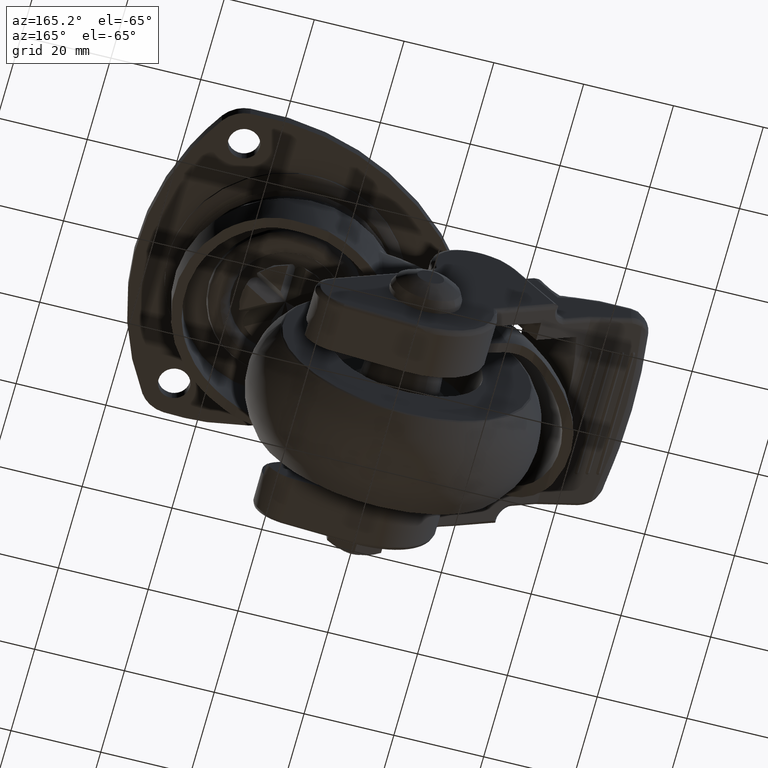
[diagram: clean part render]
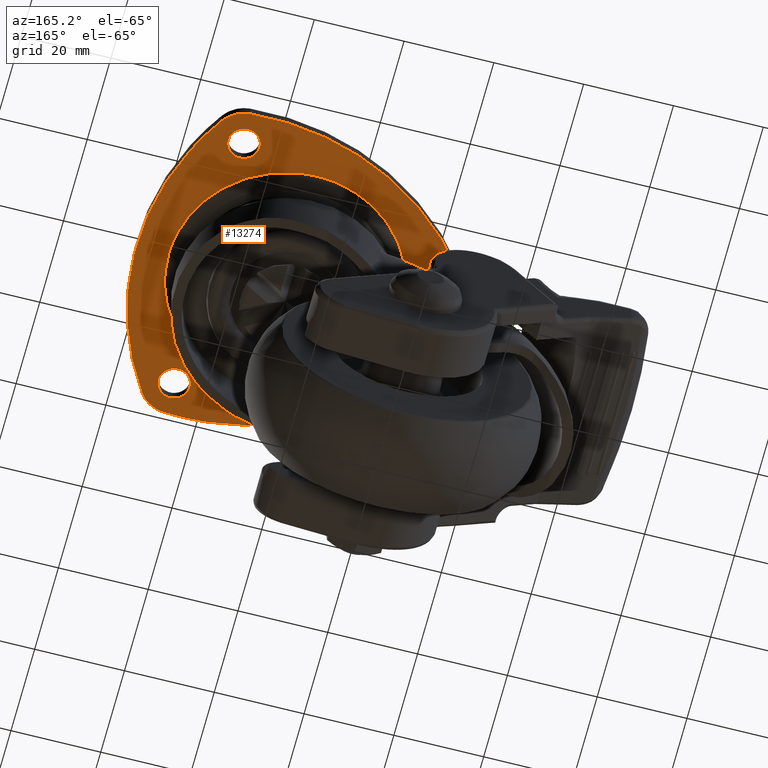
[diagram: same view with one face highlighted and labeled with its STEP entity id]
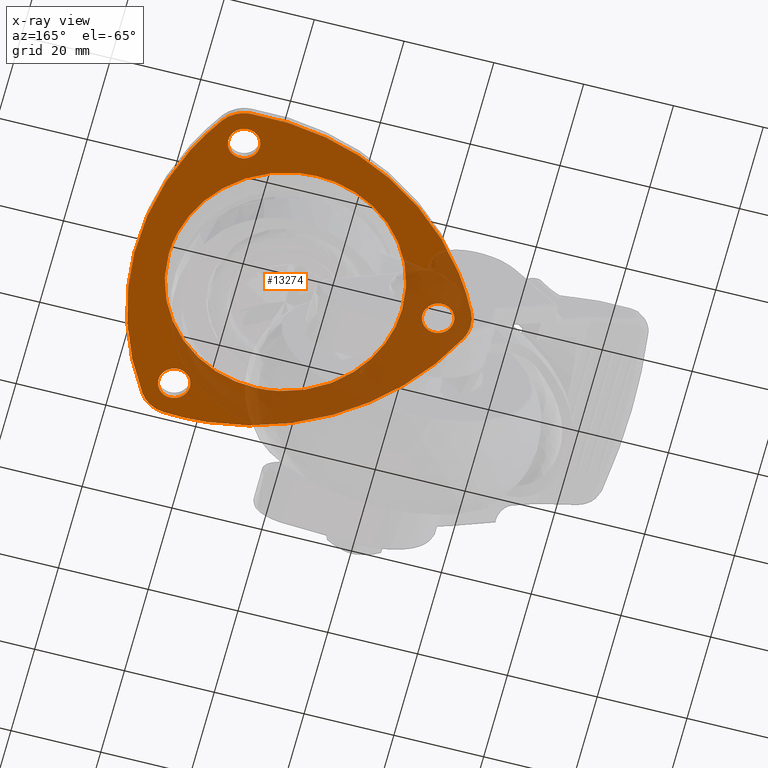
[diagram: x-ray of the same camera — body ghosted, the highlighted face saturated]
A machine part, auxiliary view. The second image highlights one B-rep face of the part: STEP entity #13274.
The next image is the same camera in x-ray: the body ghosted, the highlighted face saturated — about 37% of this face is hidden behind the body in this view.
In plain terms, the highlighted face is a freeform B-spline surface patch.
Its self-contained STEP definition (entity closure, byte-faithful):
#11162=CARTESIAN_POINT('',(-5.309104404133642,-25.460706147376239,-2.600014399278315));
#11163=VERTEX_POINT('',#11162);
#11169=CARTESIAN_POINT('',(-26.008347642583150,0.0,-2.600014399278315));
#11170=VERTEX_POINT('',#11169);
#11171=CARTESIAN_POINT('',(-5.309104404133642,-25.460706147376239,-2.600014399278315));
#11172=CARTESIAN_POINT('',(-26.008347642583143,-21.144469087682701,-2.600014399278315));
#11173=CARTESIAN_POINT('',(-26.008347642583150,0.0,-2.600014399278315));
#11181=(BOUNDED_CURVE()B_SPLINE_CURVE(2,(#11171,#11172,#11173),.UNSPECIFIED.,.F.,.U.)B_SPLINE_CURVE_WITH_KNOTS((3,3),(0.784975150511581,1.0),.UNSPECIFIED.)CURVE()GEOMETRIC_REPRESENTATION_ITEM()RATIONAL_B_SPLINE_CURVE((0.929513241397960,0.748082718833836,1.0))REPRESENTATION_ITEM(''));
#11182=EDGE_CURVE('',#11163,#11170,#11181,.T.);
#11184=CARTESIAN_POINT('',(3.844245209962828,25.722673380929930,-2.600014399278315));
#11185=VERTEX_POINT('',#11184);
#11186=CARTESIAN_POINT('',(-26.008347642583150,0.0,-2.600014399278315));
#11187=CARTESIAN_POINT('',(-26.008347642583150,26.008347642583150,-2.600014399278315));
#11188=CARTESIAN_POINT('',(0.0,26.008347642583150,-2.600014399278315));
#11189=CARTESIAN_POINT('',(1.932737144288064,26.008347642583146,-2.600014399278315));
#11190=CARTESIAN_POINT('',(3.844245209962827,25.722673380929937,-2.600014399278315));
#11198=(BOUNDED_CURVE()B_SPLINE_CURVE(2,(#11186,#11187,#11188,#11189,#11190),.UNSPECIFIED.,.F.,.U.)B_SPLINE_CURVE_WITH_KNOTS((3,2,3),(0.0,0.250000000000000,0.275488752777808),.UNSPECIFIED.)CURVE()GEOMETRIC_REPRESENTATION_ITEM()RATIONAL_B_SPLINE_CURVE((1.0,0.707106781186547,1.0,0.970138068621470,0.946365284333941))REPRESENTATION_ITEM(''));
#11199=EDGE_CURVE('',#11170,#11185,#11198,.T.);
#11309=CARTESIAN_POINT('',(26.008347642583150,0.0,-2.600014399278315));
#11310=VERTEX_POINT('',#11309);
#11311=CARTESIAN_POINT('',(3.844245209962827,25.722673380929937,-2.600014399278315));
#11312=CARTESIAN_POINT('',(26.008347642583150,22.410255447251014,-2.600014399278315));
#11313=CARTESIAN_POINT('',(26.008347642583150,0.0,-2.600014399278315));
#11321=(BOUNDED_CURVE()B_SPLINE_CURVE(2,(#11311,#11312,#11313),.UNSPECIFIED.,.F.,.U.)B_SPLINE_CURVE_WITH_KNOTS((3,3),(0.275488752777808,0.500000000000000),.UNSPECIFIED.)CURVE()GEOMETRIC_REPRESENTATION_ITEM()RATIONAL_B_SPLINE_CURVE((0.946365284333941,0.736968712565078,1.0))REPRESENTATION_ITEM(''));
#11322=EDGE_CURVE('',#11185,#11310,#11321,.T.);
#11324=CARTESIAN_POINT('',(26.008347642583150,0.0,-2.600014399278315));
#11325=CARTESIAN_POINT('',(26.008347642583150,-26.008347642583150,-2.600014399278315));
#11326=CARTESIAN_POINT('',(0.0,-26.008347642583150,-2.600014399278315));
#11327=CARTESIAN_POINT('',(-2.682797192600346,-26.008347642583153,-2.600014399278315));
#11328=CARTESIAN_POINT('',(-5.309104404133642,-25.460706147376239,-2.600014399278315));
#11336=(BOUNDED_CURVE()B_SPLINE_CURVE(2,(#11324,#11325,#11326,#11327,#11328),.UNSPECIFIED.,.F.,.U.)B_SPLINE_CURVE_WITH_KNOTS((3,2,3),(0.500000000000000,0.750000000000000,0.784975150511581),.UNSPECIFIED.)CURVE()GEOMETRIC_REPRESENTATION_ITEM()RATIONAL_B_SPLINE_CURVE((1.0,0.707106781186547,1.0,0.959024062352712,0.929513241397960))REPRESENTATION_ITEM(''));
#11337=EDGE_CURVE('',#11310,#11163,#11336,.T.);
#11399=CARTESIAN_POINT('',(17.213669888476620,32.938334794470137,-2.600014399278260));
#11400=VERTEX_POINT('',#11399);
#11406=CARTESIAN_POINT('',(20.500000000000000,29.444863000000002,-2.600014399278260));
#11407=VERTEX_POINT('',#11406);
#11408=CARTESIAN_POINT('',(20.500000000000000,29.444863000000002,-2.600014399278260));
#11409=CARTESIAN_POINT('',(20.499999999999989,32.737334233972362,-2.600014399278260));
#11410=CARTESIAN_POINT('',(17.213669888476616,32.938334794470144,-2.600014399278261));
#11418=(BOUNDED_CURVE()B_SPLINE_CURVE(2,(#11408,#11409,#11410),.UNSPECIFIED.,.F.,.U.)B_SPLINE_CURVE_WITH_KNOTS((3,3),(0.500000000000000,0.739332962231633),.UNSPECIFIED.)CURVE()GEOMETRIC_REPRESENTATION_ITEM()RATIONAL_B_SPLINE_CURVE((1.0,0.719603993295274,0.976072041651052))REPRESENTATION_ITEM(''));
#11419=EDGE_CURVE('',#11407,#11400,#11418,.T.);
#11421=CARTESIAN_POINT('',(16.586880178302810,25.969329657774541,-2.600014399278260));
#11422=VERTEX_POINT('',#11421);
#11423=CARTESIAN_POINT('',(16.586880178302813,25.969329657774534,-2.600014399278260));
#11424=CARTESIAN_POINT('',(16.792715580815575,25.944862999999994,-2.600014399278260));
#11425=CARTESIAN_POINT('',(17.0,25.944863000000002,-2.600014399278260));
#11426=CARTESIAN_POINT('',(20.499999999999996,25.944862999999998,-2.600014399278260));
#11427=CARTESIAN_POINT('',(20.500000000000000,29.444863000000002,-2.600014399278260));
#11435=(BOUNDED_CURVE()B_SPLINE_CURVE(2,(#11423,#11424,#11425,#11426,#11427),.UNSPECIFIED.,.F.,.U.)B_SPLINE_CURVE_WITH_KNOTS((3,2,3),(0.229562473476886,0.250000000000000,0.500000000000000),.UNSPECIFIED.)CURVE()GEOMETRIC_REPRESENTATION_ITEM()RATIONAL_B_SPLINE_CURVE((0.956026754111917,0.976055948288239,1.0,0.707106781186547,1.0))REPRESENTATION_ITEM(''));
#11436=EDGE_CURVE('',#11422,#11407,#11435,.T.);
#11480=CARTESIAN_POINT('',(13.500000000000000,29.444863000000002,-2.600014399278260));
#11481=VERTEX_POINT('',#11480);
#11482=CARTESIAN_POINT('',(13.500000000000000,29.444863000000002,-2.600014399278260));
#11483=CARTESIAN_POINT('',(13.500000000000000,26.336252159888140,-2.600014399278260));
#11484=CARTESIAN_POINT('',(16.586880178302810,25.969329657774541,-2.600014399278260));
#11492=(BOUNDED_CURVE()B_SPLINE_CURVE(2,(#11482,#11483,#11484),.UNSPECIFIED.,.F.,.U.)B_SPLINE_CURVE_WITH_KNOTS((3,3),(0.0,0.229562473476886),.UNSPECIFIED.)CURVE()GEOMETRIC_REPRESENTATION_ITEM()RATIONAL_B_SPLINE_CURVE((1.0,0.731050832898308,0.956026754111918))REPRESENTATION_ITEM(''));
#11493=EDGE_CURVE('',#11481,#11422,#11492,.T.);
#11495=CARTESIAN_POINT('',(17.213669888476616,32.938334794470137,-2.600014399278260));
#11496=CARTESIAN_POINT('',(17.106934671649977,32.944863000000005,-2.600014399278260));
#11497=CARTESIAN_POINT('',(17.0,32.944863000000012,-2.600014399278260));
#11498=CARTESIAN_POINT('',(13.500000000000002,32.944863000000012,-2.600014399278260));
#11499=CARTESIAN_POINT('',(13.500000000000000,29.444863000000002,-2.600014399278260));
#11507=(BOUNDED_CURVE()B_SPLINE_CURVE(2,(#11495,#11496,#11497,#11498,#11499),.UNSPECIFIED.,.F.,.U.)B_SPLINE_CURVE_WITH_KNOTS((3,2,3),(0.739332962231634,0.750000000000000,1.0),.UNSPECIFIED.)CURVE()GEOMETRIC_REPRESENTATION_ITEM()RATIONAL_B_SPLINE_CURVE((0.976072041651053,0.987502787891274,1.0,0.707106781186547,1.0))REPRESENTATION_ITEM(''));
#11508=EDGE_CURVE('',#11400,#11481,#11507,.T.);
#11585=CARTESIAN_POINT('',(17.213669888476620,-25.951392205529871,-2.600014399278260));
#11586=VERTEX_POINT('',#11585);
#11592=CARTESIAN_POINT('',(20.500000000000000,-29.444863999999999,-2.600014399278260));
#11593=VERTEX_POINT('',#11592);
#11594=CARTESIAN_POINT('',(20.500000000000000,-29.444863999999999,-2.600014399278260));
#11595=CARTESIAN_POINT('',(20.499999999999989,-26.152392766027646,-2.600014399278260));
#11596=CARTESIAN_POINT('',(17.213669888476616,-25.951392205529864,-2.600014399278261));
#11604=(BOUNDED_CURVE()B_SPLINE_CURVE(2,(#11594,#11595,#11596),.UNSPECIFIED.,.F.,.U.)B_SPLINE_CURVE_WITH_KNOTS((3,3),(0.500000000000000,0.739332962231633),.UNSPECIFIED.)CURVE()GEOMETRIC_REPRESENTATION_ITEM()RATIONAL_B_SPLINE_CURVE((1.0,0.719603993295274,0.976072041651052))REPRESENTATION_ITEM(''));
#11605=EDGE_CURVE('',#11593,#11586,#11604,.T.);
#11607=CARTESIAN_POINT('',(16.586880178302810,-32.920397342225463,-2.600014399278261));
#11608=VERTEX_POINT('',#11607);
#11609=CARTESIAN_POINT('',(16.586880178302817,-32.920397342225471,-2.600014399278261));
#11610=CARTESIAN_POINT('',(16.792715580815564,-32.944864000000003,-2.600014399278261));
#11611=CARTESIAN_POINT('',(17.0,-32.944864000000003,-2.600014399278260));
#11612=CARTESIAN_POINT('',(20.499999999999996,-32.944864000000010,-2.600014399278260));
#11613=CARTESIAN_POINT('',(20.500000000000000,-29.444863999999999,-2.600014399278260));
#11621=(BOUNDED_CURVE()B_SPLINE_CURVE(2,(#11609,#11610,#11611,#11612,#11613),.UNSPECIFIED.,.F.,.U.)B_SPLINE_CURVE_WITH_KNOTS((3,2,3),(0.229562473476886,0.250000000000000,0.500000000000000),.UNSPECIFIED.)CURVE()GEOMETRIC_REPRESENTATION_ITEM()RATIONAL_B_SPLINE_CURVE((0.956026754111917,0.976055948288239,1.0,0.707106781186547,1.0))REPRESENTATION_ITEM(''));
#11622=EDGE_CURVE('',#11608,#11593,#11621,.T.);
#11666=CARTESIAN_POINT('',(13.500000000000000,-29.444863999999999,-2.600014399278260));
#11667=VERTEX_POINT('',#11666);
#11668=CARTESIAN_POINT('',(13.500000000000000,-29.444863999999999,-2.600014399278260));
#11669=CARTESIAN_POINT('',(13.500000000000004,-32.553474840111853,-2.600014399278260));
#11670=CARTESIAN_POINT('',(16.586880178302810,-32.920397342225463,-2.600014399278261));
#11678=(BOUNDED_CURVE()B_SPLINE_CURVE(2,(#11668,#11669,#11670),.UNSPECIFIED.,.F.,.U.)B_SPLINE_CURVE_WITH_KNOTS((3,3),(0.0,0.229562473476885),.UNSPECIFIED.)CURVE()GEOMETRIC_REPRESENTATION_ITEM()RATIONAL_B_SPLINE_CURVE((1.0,0.731050832898309,0.956026754111917))REPRESENTATION_ITEM(''));
#11679=EDGE_CURVE('',#11667,#11608,#11678,.T.);
#11681=CARTESIAN_POINT('',(17.213669888476613,-25.951392205529867,-2.600014399278260));
#11682=CARTESIAN_POINT('',(17.106934671649974,-25.944864000000006,-2.600014399278261));
#11683=CARTESIAN_POINT('',(17.0,-25.944863999999999,-2.600014399278260));
#11684=CARTESIAN_POINT('',(13.500000000000002,-25.944863999999995,-2.600014399278260));
#11685=CARTESIAN_POINT('',(13.500000000000000,-29.444863999999999,-2.600014399278260));
#11693=(BOUNDED_CURVE()B_SPLINE_CURVE(2,(#11681,#11682,#11683,#11684,#11685),.UNSPECIFIED.,.F.,.U.)B_SPLINE_CURVE_WITH_KNOTS((3,2,3),(0.739332962231634,0.750000000000000,1.0),.UNSPECIFIED.)CURVE()GEOMETRIC_REPRESENTATION_ITEM()RATIONAL_B_SPLINE_CURVE((0.976072041651053,0.987502787891274,1.0,0.707106781186547,1.0))REPRESENTATION_ITEM(''));
#11694=EDGE_CURVE('',#11586,#11667,#11693,.T.);
#11771=CARTESIAN_POINT('',(-33.786330111523370,3.493471794470135,-2.600014399278261));
#11772=VERTEX_POINT('',#11771);
#11778=CARTESIAN_POINT('',(-30.500000000000000,0.0,-2.600014399278260));
#11779=VERTEX_POINT('',#11778);
#11780=CARTESIAN_POINT('',(-30.500000000000000,0.0,-2.600014399278260));
#11781=CARTESIAN_POINT('',(-30.500000000000004,3.292471233972352,-2.600014399278260));
#11782=CARTESIAN_POINT('',(-33.786330111523363,3.493471794470135,-2.600014399278261));
#11790=(BOUNDED_CURVE()B_SPLINE_CURVE(2,(#11780,#11781,#11782),.UNSPECIFIED.,.F.,.U.)B_SPLINE_CURVE_WITH_KNOTS((3,3),(0.500000000000000,0.739332962231633),.UNSPECIFIED.)CURVE()GEOMETRIC_REPRESENTATION_ITEM()RATIONAL_B_SPLINE_CURVE((1.0,0.719603993295274,0.976072041651052))REPRESENTATION_ITEM(''));
#11791=EDGE_CURVE('',#11779,#11772,#11790,.T.);
#11793=CARTESIAN_POINT('',(-34.413119821697187,-3.475533342225461,-2.600014399278260));
#11794=VERTEX_POINT('',#11793);
#11795=CARTESIAN_POINT('',(-34.413119821697194,-3.475533342225460,-2.600014399278260));
#11796=CARTESIAN_POINT('',(-34.207284419184433,-3.500000000000000,-2.600014399278260));
#11797=CARTESIAN_POINT('',(-34.0,-3.500000000000000,-2.600014399278260));
#11798=CARTESIAN_POINT('',(-30.500000000000004,-3.500000000000000,-2.600014399278260));
#11799=CARTESIAN_POINT('',(-30.500000000000000,0.0,-2.600014399278260));
#11807=(BOUNDED_CURVE()B_SPLINE_CURVE(2,(#11795,#11796,#11797,#11798,#11799),.UNSPECIFIED.,.F.,.U.)B_SPLINE_CURVE_WITH_KNOTS((3,2,3),(0.229562473476886,0.250000000000000,0.500000000000000),.UNSPECIFIED.)CURVE()GEOMETRIC_REPRESENTATION_ITEM()RATIONAL_B_SPLINE_CURVE((0.956026754111917,0.976055948288239,1.0,0.707106781186547,1.0))REPRESENTATION_ITEM(''));
#11808=EDGE_CURVE('',#11794,#11779,#11807,.T.);
#11852=CARTESIAN_POINT('',(-37.500000000000007,0.0,-2.600014399278260));
#11853=VERTEX_POINT('',#11852);
#11854=CARTESIAN_POINT('',(-37.500000000000007,0.0,-2.600014399278260));
#11855=CARTESIAN_POINT('',(-37.500000000000000,-3.108610840111851,-2.600014399278260));
#11856=CARTESIAN_POINT('',(-34.413119821697194,-3.475533342225460,-2.600014399278260));
#11864=(BOUNDED_CURVE()B_SPLINE_CURVE(2,(#11854,#11855,#11856),.UNSPECIFIED.,.F.,.U.)B_SPLINE_CURVE_WITH_KNOTS((3,3),(0.0,0.229562473476886),.UNSPECIFIED.)CURVE()GEOMETRIC_REPRESENTATION_ITEM()RATIONAL_B_SPLINE_CURVE((1.0,0.731050832898309,0.956026754111917))REPRESENTATION_ITEM(''));
#11865=EDGE_CURVE('',#11853,#11794,#11864,.T.);
#11867=CARTESIAN_POINT('',(-33.786330111523370,3.493471794470135,-2.600014399278261));
#11868=CARTESIAN_POINT('',(-33.893065328350026,3.500000000000000,-2.600014399278261));
#11869=CARTESIAN_POINT('',(-34.0,3.500000000000000,-2.600014399278260));
#11870=CARTESIAN_POINT('',(-37.500000000000000,3.500000000000000,-2.600014399278260));
#11871=CARTESIAN_POINT('',(-37.500000000000007,0.0,-2.600014399278260));
#11879=(BOUNDED_CURVE()B_SPLINE_CURVE(2,(#11867,#11868,#11869,#11870,#11871),.UNSPECIFIED.,.F.,.U.)B_SPLINE_CURVE_WITH_KNOTS((3,2,3),(0.739332962231633,0.750000000000000,1.0),.UNSPECIFIED.)CURVE()GEOMETRIC_REPRESENTATION_ITEM()RATIONAL_B_SPLINE_CURVE((0.976072041651052,0.987502787891274,1.0,0.707106781186547,1.0))REPRESENTATION_ITEM(''));
#11880=EDGE_CURVE('',#11772,#11853,#11879,.T.);
#13018=CARTESIAN_POINT('',(23.015388846945651,-33.491788390205699,-2.600014399278260));
#13019=VERTEX_POINT('',#13018);
#13025=CARTESIAN_POINT('',(23.015388388515749,33.491788056874647,-2.600014399278260));
#13026=VERTEX_POINT('',#13025);
#13027=CARTESIAN_POINT('',(23.015388846945651,-33.491788390205699,-2.600014399278260));
#13028=CARTESIAN_POINT('',(45.547387143376824,-0.000000012458430,-2.600014399278261));
#13029=CARTESIAN_POINT('',(23.015388388515749,33.491788056874647,-2.600014399278260));
#13037=(BOUNDED_CURVE()B_SPLINE_CURVE(2,(#13027,#13028,#13029),.UNSPECIFIED.,.F.,.U.)CURVE()GEOMETRIC_REPRESENTATION_ITEM()QUASI_UNIFORM_CURVE()RATIONAL_B_SPLINE_CURVE((1.0,0.829708806379097,1.0))REPRESENTATION_ITEM(''));
#13038=EDGE_CURVE('',#13019,#13026,#13037,.T.);
#13063=CARTESIAN_POINT('',(17.497044081159750,-36.677806277512147,-2.600014399278260));
#13064=VERTEX_POINT('',#13063);
#13070=CARTESIAN_POINT('',(17.497044081159750,-36.677806277512147,-2.600014399278260));
#13071=CARTESIAN_POINT('',(21.035549391231800,-36.434641538010311,-2.600014399278261));
#13072=CARTESIAN_POINT('',(23.015388846945658,-33.491788390205713,-2.600014399278260));
#13080=(BOUNDED_CURVE()B_SPLINE_CURVE(2,(#13070,#13071,#13072),.UNSPECIFIED.,.F.,.U.)CURVE()GEOMETRIC_REPRESENTATION_ITEM()QUASI_UNIFORM_CURVE()RATIONAL_B_SPLINE_CURVE((1.0,0.898266698470266,1.0))REPRESENTATION_ITEM(''));
#13081=EDGE_CURVE('',#13064,#13019,#13080,.T.);
#13102=CARTESIAN_POINT('',(-40.512433752585700,-3.186017359993685,-2.600014399278260));
#13103=VERTEX_POINT('',#13102);
#13109=CARTESIAN_POINT('',(-40.512433752585700,-3.186017359993685,-2.600014399278260));
#13110=CARTESIAN_POINT('',(-22.773694440163965,-39.445195359732807,-2.600014399278260));
#13111=CARTESIAN_POINT('',(17.497044081159750,-36.677806277512147,-2.600014399278260));
#13119=(BOUNDED_CURVE()B_SPLINE_CURVE(2,(#13109,#13110,#13111),.UNSPECIFIED.,.F.,.U.)CURVE()GEOMETRIC_REPRESENTATION_ITEM()QUASI_UNIFORM_CURVE()RATIONAL_B_SPLINE_CURVE((1.0,0.829708804344992,1.0))REPRESENTATION_ITEM(''));
#13120=EDGE_CURVE('',#13103,#13064,#13119,.T.);
#13141=CARTESIAN_POINT('',(-40.512434469675547,3.186017220637175,-2.600014399278260));
#13142=VERTEX_POINT('',#13141);
#13148=CARTESIAN_POINT('',(-40.512434469675547,3.186017220637175,-2.600014399278260));
#13149=CARTESIAN_POINT('',(-42.071099256600071,-0.000000245085826,-2.600014399278261));
#13150=CARTESIAN_POINT('',(-40.512433752585792,-3.186017359993728,-2.600014399278260));
#13158=(BOUNDED_CURVE()B_SPLINE_CURVE(2,(#13148,#13149,#13150),.UNSPECIFIED.,.F.,.U.)CURVE()GEOMETRIC_REPRESENTATION_ITEM()QUASI_UNIFORM_CURVE()RATIONAL_B_SPLINE_CURVE((1.0,0.898266737838886,1.0))REPRESENTATION_ITEM(''));
#13159=EDGE_CURVE('',#13142,#13103,#13158,.T.);
#13180=CARTESIAN_POINT('',(17.497044081159849,36.677805277511851,-2.600014399278260));
#13181=VERTEX_POINT('',#13180);
#13187=CARTESIAN_POINT('',(17.497044081159839,36.677805277511872,-2.600014399278260));
#13188=CARTESIAN_POINT('',(-22.773694567497525,39.445194561564740,-2.600014399278260));
#13189=CARTESIAN_POINT('',(-40.512434469675547,3.186017220637188,-2.600014399278260));
#13197=(BOUNDED_CURVE()B_SPLINE_CURVE(2,(#13187,#13188,#13189),.UNSPECIFIED.,.F.,.U.)CURVE()GEOMETRIC_REPRESENTATION_ITEM()QUASI_UNIFORM_CURVE()RATIONAL_B_SPLINE_CURVE((1.0,0.829708806475265,1.0))REPRESENTATION_ITEM(''));
#13198=EDGE_CURVE('',#13181,#13142,#13197,.T.);
#13220=CARTESIAN_POINT('',(23.015388388515749,33.491788056874647,-2.600014399278260));
#13221=CARTESIAN_POINT('',(21.035548891077902,36.434640572380573,-2.600014399278260));
#13222=CARTESIAN_POINT('',(17.497044081159849,36.677805277511851,-2.600014399278260));
#13230=(BOUNDED_CURVE()B_SPLINE_CURVE(2,(#13220,#13221,#13222),.UNSPECIFIED.,.F.,.U.)CURVE()GEOMETRIC_REPRESENTATION_ITEM()QUASI_UNIFORM_CURVE()RATIONAL_B_SPLINE_CURVE((1.0,0.898266722989651,1.0))REPRESENTATION_ITEM(''));
#13231=EDGE_CURVE('',#13026,#13181,#13230,.T.);
#13237=CARTESIAN_POINT('',(-44.970418863855969,40.493660379388039,-2.600014399278315));
#13238=CARTESIAN_POINT('',(36.953280852154982,40.493660379388039,-2.600014399278315));
#13239=CARTESIAN_POINT('',(-44.970418863855969,-40.493659716741213,-2.600014399278315));
#13240=CARTESIAN_POINT('',(36.953280852154982,-40.493659716741213,-2.600014399278315));
#13241=B_SPLINE_SURFACE_WITH_KNOTS('',1,1,((#13237,#13239),(#13238,#13240)),.UNSPECIFIED.,.F.,.F.,.U.,(2,2),(2,2),(0.0,81.923699716010958),(0.0,80.987320096129253),.UNSPECIFIED.);
#13242=ORIENTED_EDGE('',*,*,#13231,.F.);
#13243=ORIENTED_EDGE('',*,*,#13038,.F.);
#13244=ORIENTED_EDGE('',*,*,#13081,.F.);
#13245=ORIENTED_EDGE('',*,*,#13120,.F.);
#13246=ORIENTED_EDGE('',*,*,#13159,.F.);
#13247=ORIENTED_EDGE('',*,*,#13198,.F.);
#13248=EDGE_LOOP('',(#13242,#13243,#13244,#13245,#13246,#13247));
#13249=FACE_OUTER_BOUND('',#13248,.T.);
#13250=ORIENTED_EDGE('',*,*,#11791,.T.);
#13251=ORIENTED_EDGE('',*,*,#11880,.T.);
#13252=ORIENTED_EDGE('',*,*,#11865,.T.);
#13253=ORIENTED_EDGE('',*,*,#11808,.T.);
#13254=EDGE_LOOP('',(#13250,#13251,#13252,#13253));
#13255=FACE_BOUND('',#13254,.T.);
#13256=ORIENTED_EDGE('',*,*,#11605,.T.);
#13257=ORIENTED_EDGE('',*,*,#11694,.T.);
#13258=ORIENTED_EDGE('',*,*,#11679,.T.);
#13259=ORIENTED_EDGE('',*,*,#11622,.T.);
#13260=EDGE_LOOP('',(#13256,#13257,#13258,#13259));
#13261=FACE_BOUND('',#13260,.T.);
#13262=ORIENTED_EDGE('',*,*,#11419,.T.);
#13263=ORIENTED_EDGE('',*,*,#11508,.T.);
#13264=ORIENTED_EDGE('',*,*,#11493,.T.);
#13265=ORIENTED_EDGE('',*,*,#11436,.T.);
#13266=EDGE_LOOP('',(#13262,#13263,#13264,#13265));
#13267=FACE_BOUND('',#13266,.T.);
#13268=ORIENTED_EDGE('',*,*,#11199,.F.);
#13269=ORIENTED_EDGE('',*,*,#11182,.F.);
#13270=ORIENTED_EDGE('',*,*,#11337,.F.);
#13271=ORIENTED_EDGE('',*,*,#11322,.F.);
#13272=EDGE_LOOP('',(#13268,#13269,#13270,#13271));
#13273=FACE_BOUND('',#13272,.T.);
#13274=ADVANCED_FACE('',(#13249,#13255,#13261,#13267,#13273),#13241,.T.);